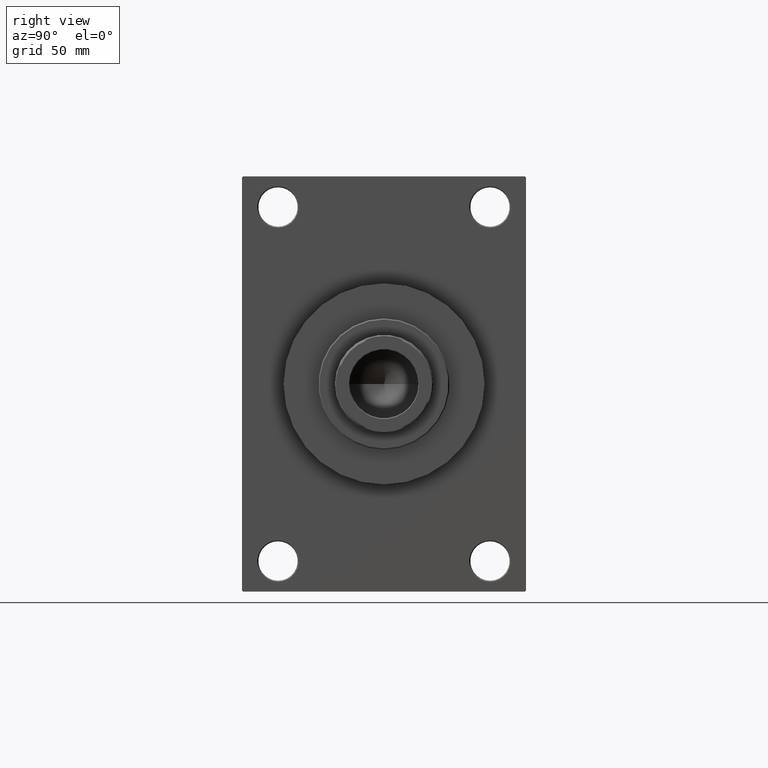
[diagram: clean part render]
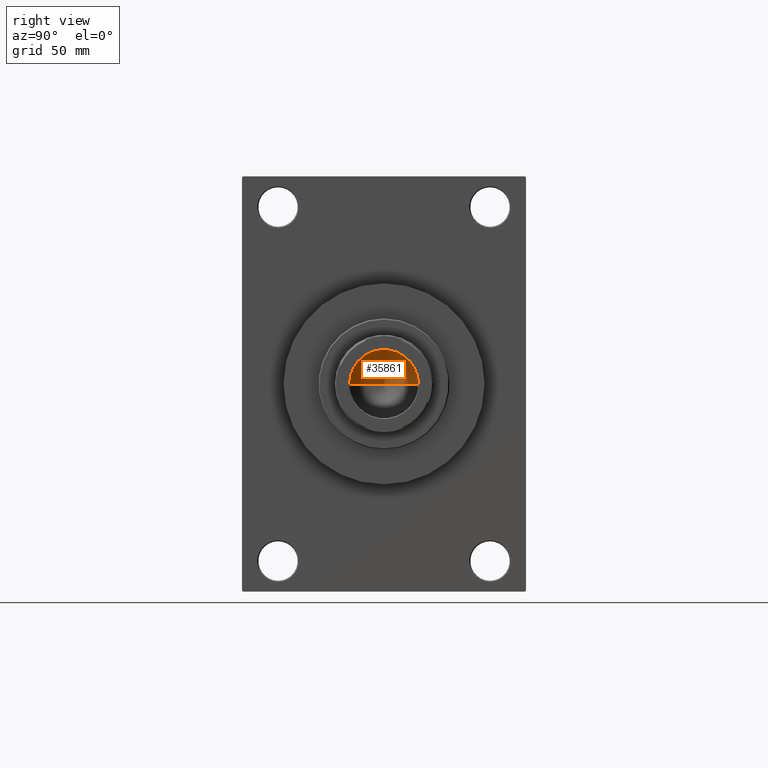
[diagram: same view with one face highlighted and labeled with its STEP entity id]
A machine part, right view. The second image highlights one B-rep face of the part: STEP entity #35861.
In plain terms, the highlighted conical surface has half-angle 59 deg.
Its self-contained STEP definition (entity closure, byte-faithful):
#2612 = CARTESIAN_POINT ( 'NONE',  ( 15.74999999999998934, 0.000000000000000000, 123.0000000000000284 ) ) ;
#4804 = VECTOR ( 'NONE', #23125, 1000.000000000000000 ) ;
#6466 = LINE ( 'NONE', #2612, #22351 ) ;
#6477 = DIRECTION ( 'NONE',  ( -0.000000000000000000, -0.000000000000000000, 1.000000000000000000 ) ) ;
#8258 = CIRCLE ( 'NONE', #35184, 15.74999999999998934 ) ;
#8428 = CARTESIAN_POINT ( 'NONE',  ( -15.74999999999998934, 1.928818708657080161E-15, 123.0000000000000284 ) ) ;
#8742 = VERTEX_POINT ( 'NONE', #39436 ) ;
#9367 = EDGE_CURVE ( 'NONE', #24705, #8742, #6466, .T. ) ;
#10620 = CARTESIAN_POINT ( 'NONE',  ( 0.000000000000000000, 0.000000000000000000, 123.0000000000000284 ) ) ;
#11668 = AXIS2_PLACEMENT_3D ( 'NONE', #43845, #6477, #39753 ) ;
#12052 = LINE ( 'NONE', #8428, #4804 ) ;
#13721 = FACE_OUTER_BOUND ( 'NONE', #18944, .T. ) ;
#14576 = EDGE_CURVE ( 'NONE', #24705, #31366, #12052, .T. ) ;
#17145 = CARTESIAN_POINT ( 'NONE',  ( -1.497379240617067851E-14, 0.000000000000000000, 113.5364452503159356 ) ) ;
#18944 = EDGE_LOOP ( 'NONE', ( #42894, #36754, #19733 ) ) ;
#19733 = ORIENTED_EDGE ( 'NONE', *, *, #46103, .T. ) ;
#21665 = CONICAL_SURFACE ( 'NONE', #11668, 15.74999999999998934, 1.029744258676652979 ) ;
#22351 = VECTOR ( 'NONE', #43594, 1000.000000000000000 ) ;
#23125 = DIRECTION ( 'NONE',  ( -0.8571673007021115565, 1.049727191138617710E-16, 0.5150380749100554878 ) ) ;
#24705 = VERTEX_POINT ( 'NONE', #17145 ) ;
#25329 = DIRECTION ( 'NONE',  ( 1.000000000000000000, 0.000000000000000000, 0.000000000000000000 ) ) ;
#26152 = CARTESIAN_POINT ( 'NONE',  ( -15.74999999999998934, 1.928818708657080161E-15, 123.0000000000000284 ) ) ;
#31366 = VERTEX_POINT ( 'NONE', #26152 ) ;
#35184 = AXIS2_PLACEMENT_3D ( 'NONE', #10620, #36884, #25329 ) ;
#35861 = ADVANCED_FACE ( 'NONE', ( #13721 ), #21665, .F. ) ;
#36754 = ORIENTED_EDGE ( 'NONE', *, *, #14576, .T. ) ;
#36884 = DIRECTION ( 'NONE',  ( -0.000000000000000000, -0.000000000000000000, 1.000000000000000000 ) ) ;
#39436 = CARTESIAN_POINT ( 'NONE',  ( 15.74999999999998934, 0.000000000000000000, 123.0000000000000284 ) ) ;
#39753 = DIRECTION ( 'NONE',  ( 1.000000000000000000, 0.000000000000000000, 0.000000000000000000 ) ) ;
#42894 = ORIENTED_EDGE ( 'NONE', *, *, #9367, .F. ) ;
#43594 = DIRECTION ( 'NONE',  ( 0.8571673007021115565, 0.000000000000000000, 0.5150380749100554878 ) ) ;
#43845 = CARTESIAN_POINT ( 'NONE',  ( 0.000000000000000000, 0.000000000000000000, 123.0000000000000284 ) ) ;
#46103 = EDGE_CURVE ( 'NONE', #31366, #8742, #8258, .T. ) ;